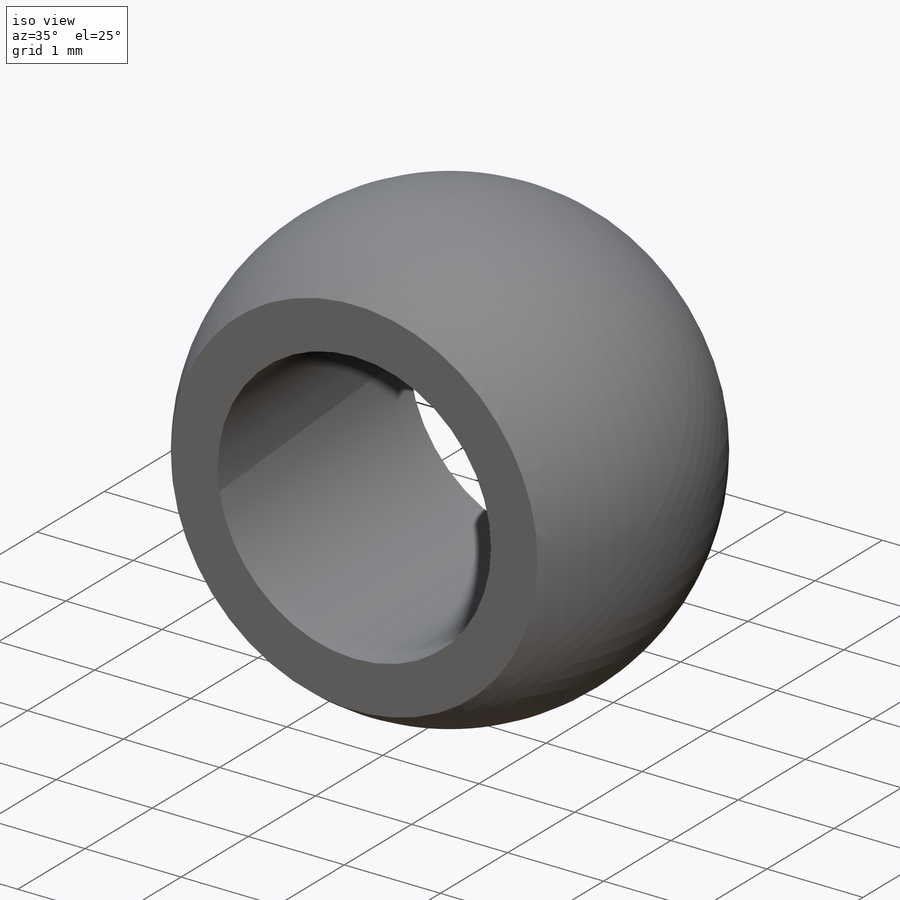
[diagram: iso view]
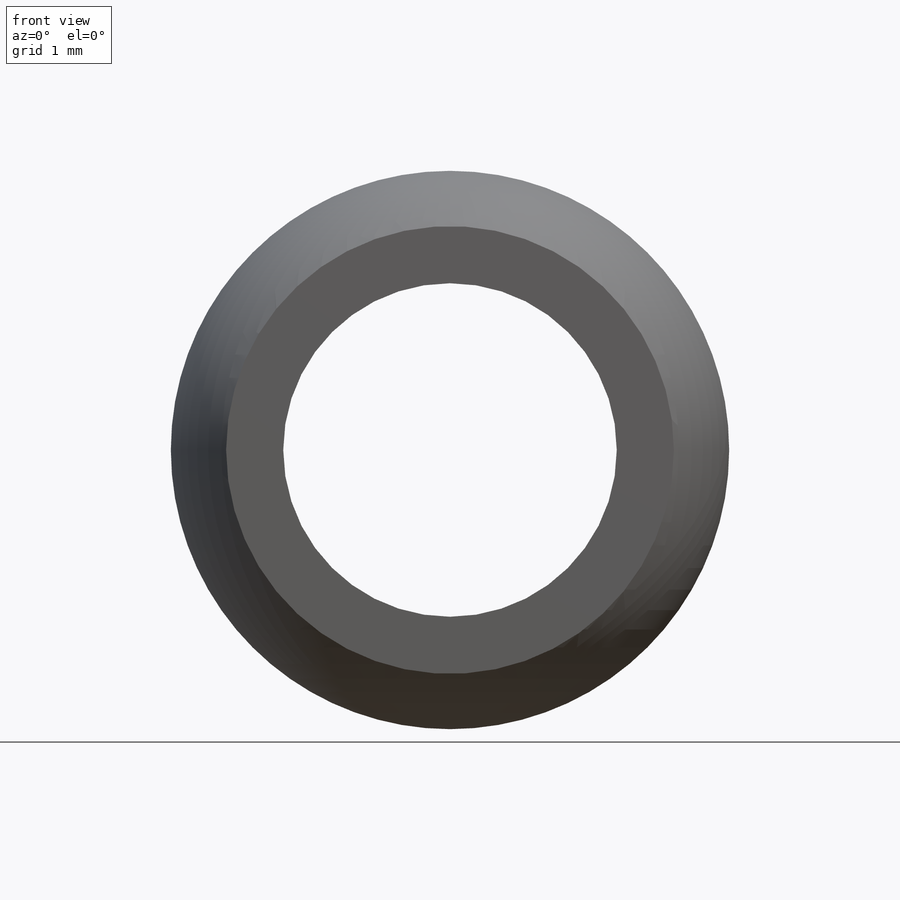
[diagram: front view]
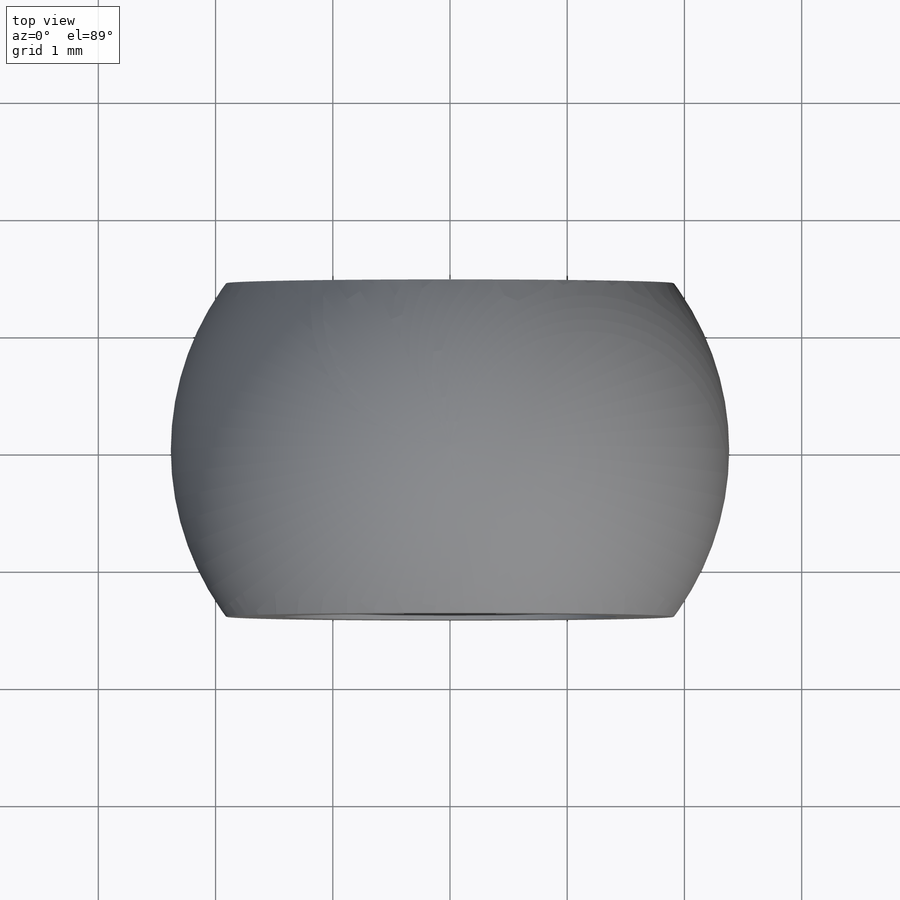
[diagram: top view]
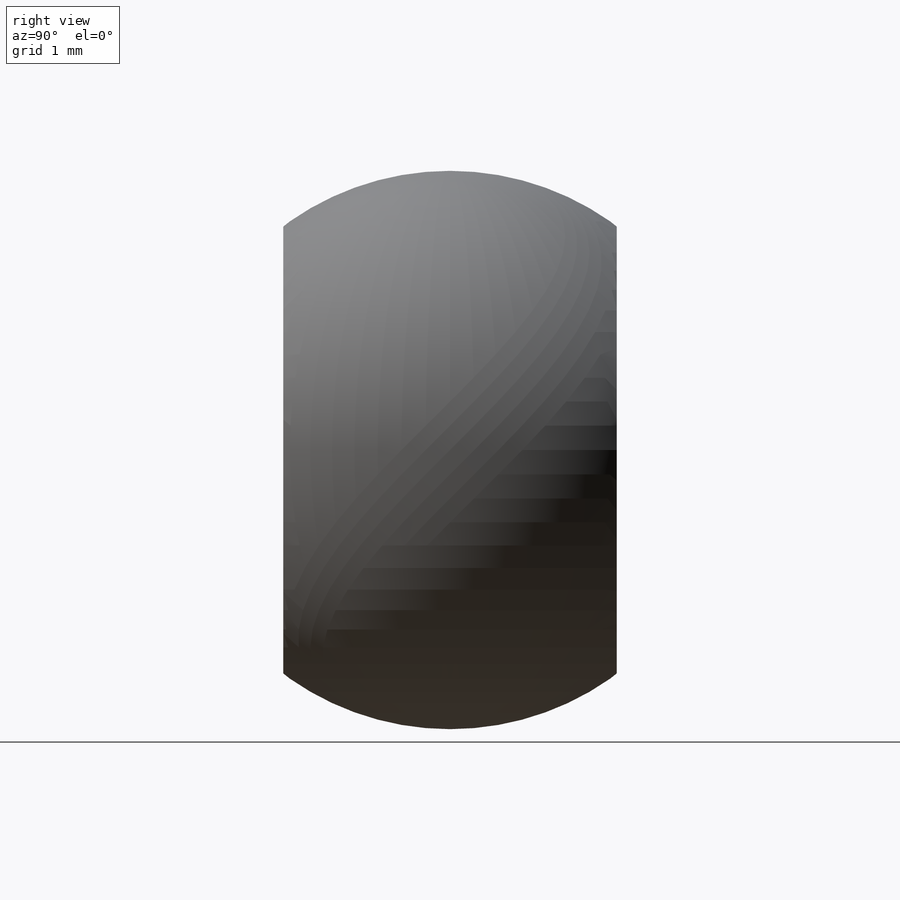
[diagram: right view]
SOLIDWORKS PART (.sldprt)
format: sldprt  version: not decoded by parser v0  size: 210,944 bytes
history: native  units: mm
features: sketch x5, plane x3, cut_extrude x3, material x1, revolve x1 (+12 scaffold rows collapsed)
feature tree (25):
  scaffold x12  (default folders/planes/origin — collapsed)
  material  "Material <not specified>"
  sketch  "Sketch1"  dims[D1=2.54mm]
  plane  "Plane1"
  sketch  "Sketch2"
  revolve  "Revolve2"  Angle=360deg
  sketch  "Sketch4"  dims[D1=~0.753927mm]
  cut_extrude  "Extrude1"  [1 undecoded]
  plane  "Plane4"  Offset=1.4224mm
  plane  "Plane5"  Offset=1.4224mm
  sketch  "Sketch5"
  cut_extrude  "Extrude2"  Depth=2.54mm
  sketch  "Sketch6"
  cut_extrude  "Extrude3"  Depth=2.54mm
decode coverage: 5 of 9 modeling features carry decoded parameters
note: ~ marks probable driven/reference dimensions
note: 1 parameter value undecoded
note: suppression state not decoded; provenance and decode notes live in map.json
